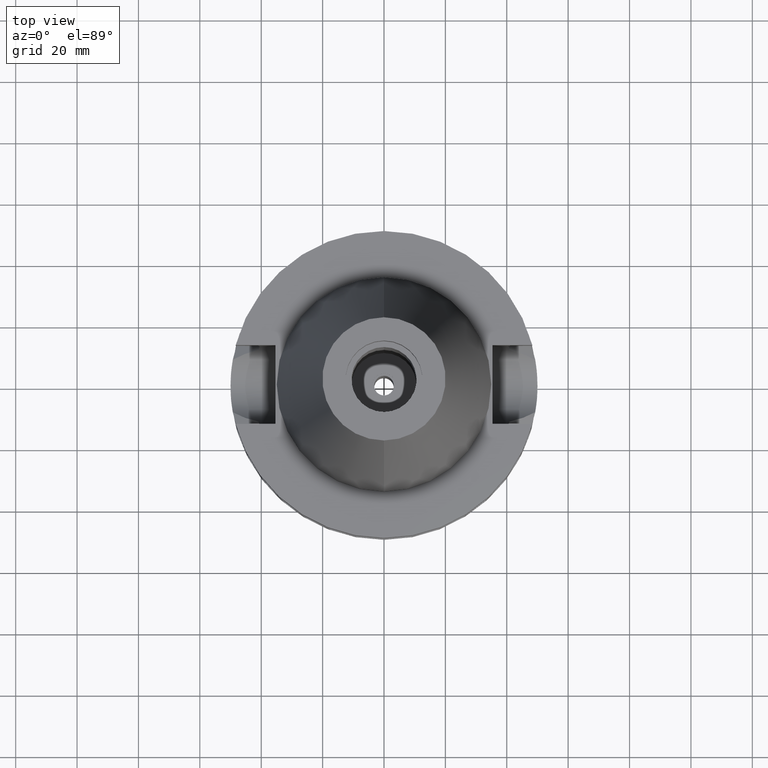
[diagram: clean part render]
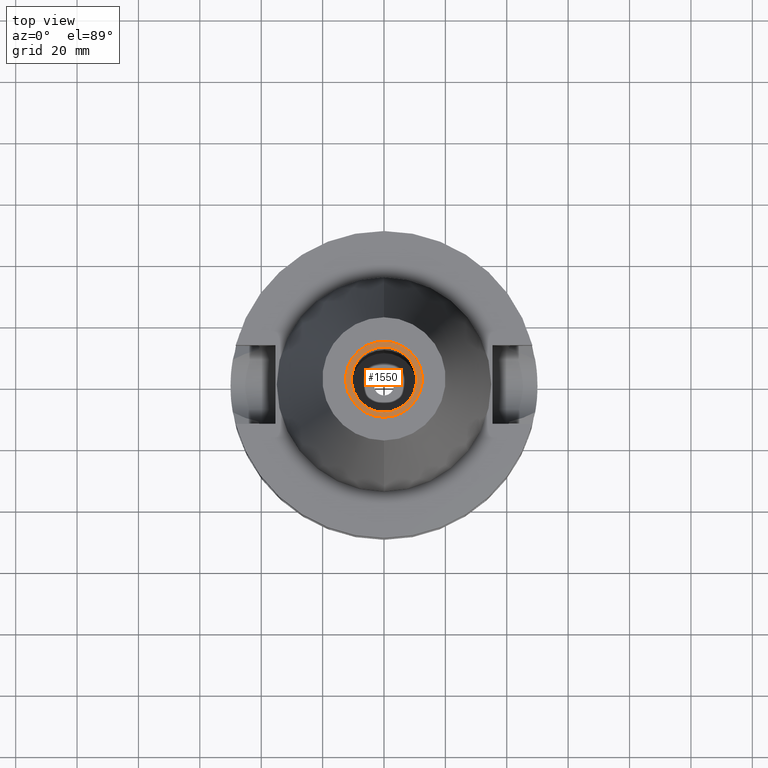
[diagram: same view with one face highlighted and labeled with its STEP entity id]
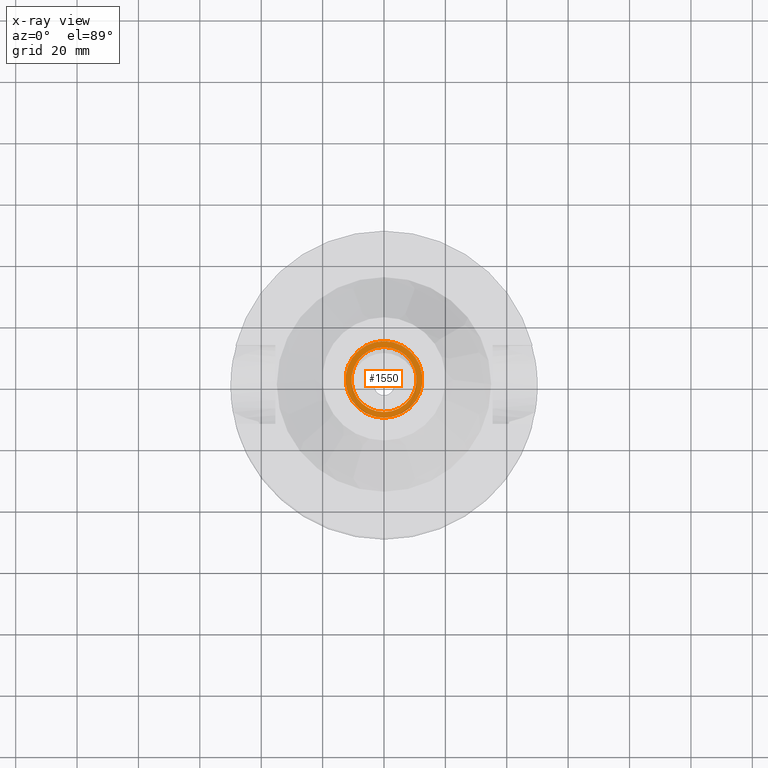
[diagram: x-ray of the same camera — body ghosted, the highlighted face saturated]
A machine part, top view. The second image highlights one B-rep face of the part: STEP entity #1550.
The next image is the same camera in x-ray: the body ghosted, the highlighted face saturated — about 0% of this face is hidden behind the body in this view.
In plain terms, the highlighted planar face has unit normal (0, 0, -1).
Its self-contained STEP definition (entity closure, byte-faithful):
#19 = ORIENTED_EDGE ( 'NONE', *, *, #3407, .F. ) ;
#144 = PLANE ( 'NONE',  #2449 ) ;
#163 = FACE_BOUND ( 'NONE', #2985, .T. ) ;
#432 = DIRECTION ( 'NONE',  ( 0.0000000000000000000, 0.0000000000000000000, -1.000000000000000000 ) ) ;
#446 = DIRECTION ( 'NONE',  ( 0.0000000000000000000, 1.000000000000000000, 0.0000000000000000000 ) ) ;
#533 = DIRECTION ( 'NONE',  ( 0.0000000000000000000, 1.000000000000000000, 0.0000000000000000000 ) ) ;
#664 = ORIENTED_EDGE ( 'NONE', *, *, #3560, .F. ) ;
#719 = VERTEX_POINT ( 'NONE', #1892 ) ;
#725 = EDGE_CURVE ( 'NONE', #719, #2299, #1249, .T. ) ;
#962 = DIRECTION ( 'NONE',  ( 0.0000000000000000000, -1.000000000000000000, 0.0000000000000000000 ) ) ;
#1183 = AXIS2_PLACEMENT_3D ( 'NONE', #3264, #432, #446 ) ;
#1186 = ORIENTED_EDGE ( 'NONE', *, *, #725, .F. ) ;
#1235 = AXIS2_PLACEMENT_3D ( 'NONE', #3399, #3349, #533 ) ;
#1249 = CIRCLE ( 'NONE', #1183, 12.50000000000000000 ) ;
#1285 = DIRECTION ( 'NONE',  ( 0.0000000000000000000, -1.000000000000000000, 0.0000000000000000000 ) ) ;
#1478 = DIRECTION ( 'NONE',  ( 0.0000000000000000000, 0.0000000000000000000, -1.000000000000000000 ) ) ;
#1536 = DIRECTION ( 'NONE',  ( 0.0000000000000000000, 0.0000000000000000000, 1.000000000000000000 ) ) ;
#1550 = ADVANCED_FACE ( 'NONE', ( #2701, #163 ), #144, .F. ) ;
#1557 = DIRECTION ( 'NONE',  ( 0.0000000000000000000, -1.000000000000000000, 0.0000000000000000000 ) ) ;
#1587 = AXIS2_PLACEMENT_3D ( 'NONE', #2111, #1536, #1557 ) ;
#1886 = EDGE_LOOP ( 'NONE', ( #1186, #664 ) ) ;
#1892 = CARTESIAN_POINT ( 'NONE',  ( 0.0000000000000000000, 12.50000000000000000, 88.79999999999999716 ) ) ;
#2111 = CARTESIAN_POINT ( 'NONE',  ( 0.0000000000000000000, 2.585719251719999535E-14, 88.79999999999999716 ) ) ;
#2124 = CIRCLE ( 'NONE', #3561, 12.50000000000000000 ) ;
#2166 = CARTESIAN_POINT ( 'NONE',  ( 0.0000000000000000000, 10.59999999999999964, 88.79999999999999716 ) ) ;
#2235 = CARTESIAN_POINT ( 'NONE',  ( 0.0000000000000000000, -12.50000000000000000, 88.79999999999999716 ) ) ;
#2257 = CARTESIAN_POINT ( 'NONE',  ( 0.0000000000000000000, -10.59999999999999964, 88.79999999999999716 ) ) ;
#2299 = VERTEX_POINT ( 'NONE', #2235 ) ;
#2443 = DIRECTION ( 'NONE',  ( 0.0000000000000000000, 0.0000000000000000000, -1.000000000000000000 ) ) ;
#2449 = AXIS2_PLACEMENT_3D ( 'NONE', #3579, #2443, #1285 ) ;
#2471 = VERTEX_POINT ( 'NONE', #2257 ) ;
#2487 = CIRCLE ( 'NONE', #1235, 10.59999999999999964 ) ;
#2691 = VERTEX_POINT ( 'NONE', #2166 ) ;
#2701 = FACE_OUTER_BOUND ( 'NONE', #1886, .T. ) ;
#2942 = CARTESIAN_POINT ( 'NONE',  ( 0.0000000000000000000, 2.585719251719999535E-14, 88.79999999999999716 ) ) ;
#2985 = EDGE_LOOP ( 'NONE', ( #19, #3683 ) ) ;
#3194 = CIRCLE ( 'NONE', #1587, 10.59999999999999964 ) ;
#3264 = CARTESIAN_POINT ( 'NONE',  ( 0.0000000000000000000, 2.585719251719999535E-14, 88.79999999999999716 ) ) ;
#3349 = DIRECTION ( 'NONE',  ( 0.0000000000000000000, 0.0000000000000000000, 1.000000000000000000 ) ) ;
#3399 = CARTESIAN_POINT ( 'NONE',  ( 0.0000000000000000000, 2.585719251719999535E-14, 88.79999999999999716 ) ) ;
#3407 = EDGE_CURVE ( 'NONE', #2691, #2471, #2487, .T. ) ;
#3560 = EDGE_CURVE ( 'NONE', #2299, #719, #2124, .T. ) ;
#3561 = AXIS2_PLACEMENT_3D ( 'NONE', #2942, #1478, #962 ) ;
#3579 = CARTESIAN_POINT ( 'NONE',  ( 0.0000000000000000000, 2.312133156789999731E-14, 88.79999999999999716 ) ) ;
#3658 = EDGE_CURVE ( 'NONE', #2471, #2691, #3194, .T. ) ;
#3683 = ORIENTED_EDGE ( 'NONE', *, *, #3658, .F. ) ;